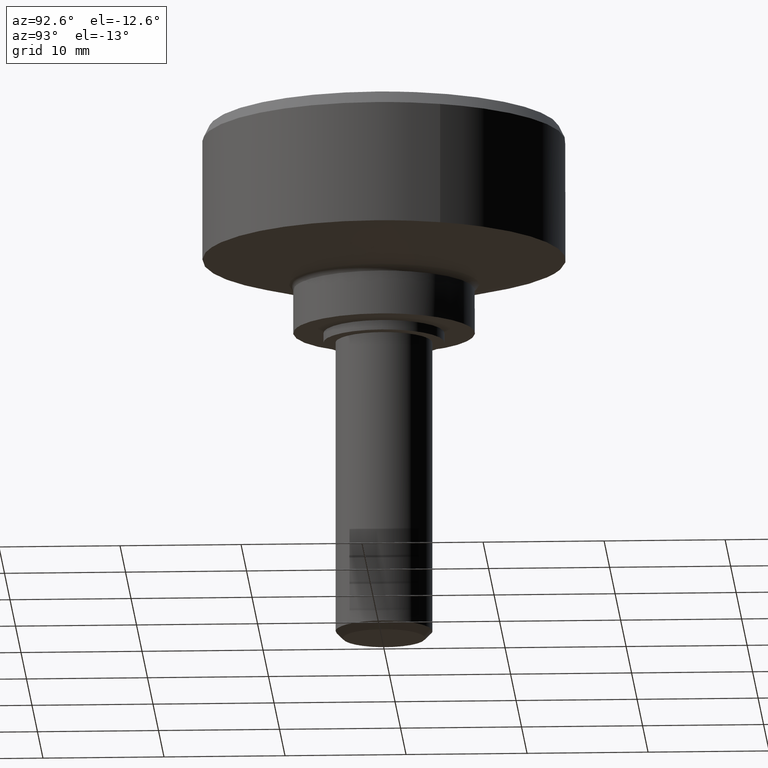
[diagram: clean part render]
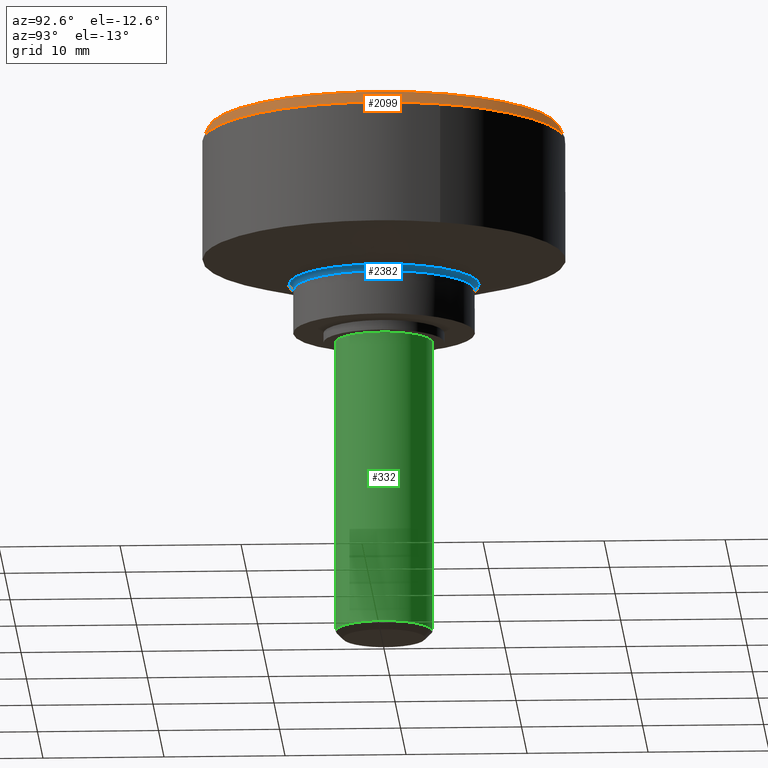
[diagram: same view with three faces highlighted in distinct colors, each labeled with its STEP entity id]
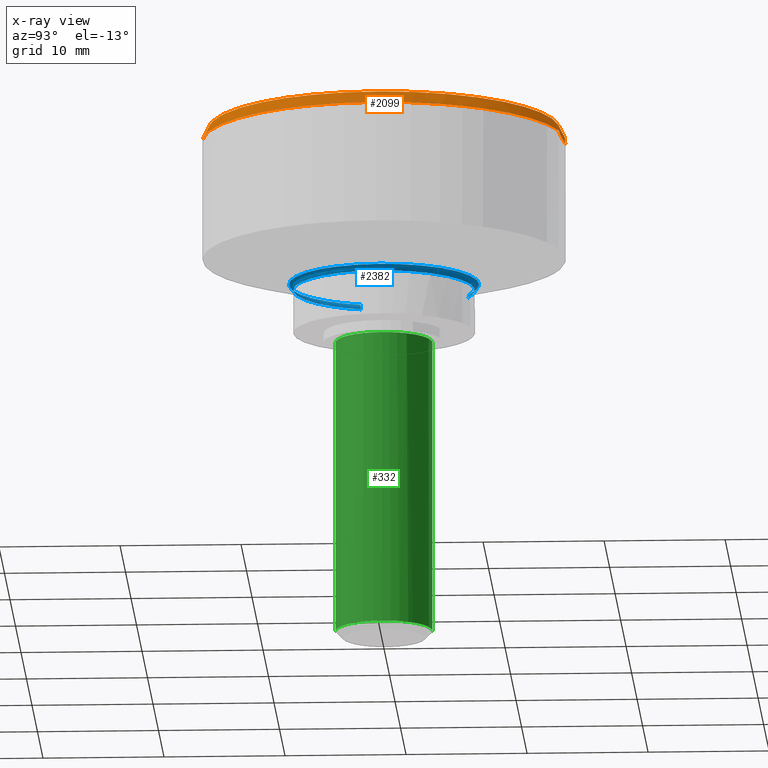
[diagram: x-ray of the same camera — body ghosted, the three highlighted faces saturated]
A machine part, auxiliary view with three faces highlighted in distinct colors.
The next image is the same camera in x-ray (body ghosted, the three faces saturated) — at least one of them is partly hidden behind the body in this view.
Their STEP definitions:

[orange] entity #2099 — the highlighted face is a freeform B-spline surface patch.
#1903=CARTESIAN_POINT('',(14.042153940228371,5.274268927437070,17.0));
#1904=VERTEX_POINT('',#1903);
#1905=CARTESIAN_POINT('',(15.0,0.0,17.0));
#1906=VERTEX_POINT('',#1905);
#1907=CARTESIAN_POINT('',(14.042153940228379,5.274268927437070,17.000000000000004));
#1908=CARTESIAN_POINT('',(15.000000000000004,2.724110031350862,17.000000000000004));
#1909=CARTESIAN_POINT('',(15.0,0.0,17.0));
#1917=(BOUNDED_CURVE()B_SPLINE_CURVE(2,(#1907,#1908,#1909),.UNSPECIFIED.,.F.,.U.)B_SPLINE_CURVE_WITH_KNOTS((3,3),(0.440284186386345,0.500000000000000),.UNSPECIFIED.)CURVE()GEOMETRIC_REPRESENTATION_ITEM()RATIONAL_B_SPLINE_CURVE((0.893499573588713,0.930038572546530,1.0))REPRESENTATION_ITEM(''));
#1918=EDGE_CURVE('',#1904,#1906,#1917,.T.);
#1920=CARTESIAN_POINT('',(0.915728093027169,-14.972021976328129,16.999999999998501));
#1921=VERTEX_POINT('',#1920);
#1922=CARTESIAN_POINT('',(15.0,0.0,17.0));
#1923=CARTESIAN_POINT('',(15.000000000000004,-14.110591003569139,16.999999999999993));
#1924=CARTESIAN_POINT('',(0.915728093027169,-14.972021976328126,16.999999999998497));
#1932=(BOUNDED_CURVE()B_SPLINE_CURVE(2,(#1922,#1923,#1924),.UNSPECIFIED.,.F.,.U.)B_SPLINE_CURVE_WITH_KNOTS((3,3),(0.500000000000000,0.739332962241769),.UNSPECIFIED.)CURVE()GEOMETRIC_REPRESENTATION_ITEM()RATIONAL_B_SPLINE_CURVE((1.0,0.719603993283399,0.976072041672776))REPRESENTATION_ITEM(''));
#1933=EDGE_CURVE('',#1906,#1921,#1932,.T.);
#1973=CARTESIAN_POINT('',(-1.770513519874283,14.895142895454370,16.999999999995840));
#1974=VERTEX_POINT('',#1973);
#1975=CARTESIAN_POINT('',(-1.770513519874283,14.895142895454363,16.999999999995833));
#1976=CARTESIAN_POINT('',(-0.888361794801552,15.000000000000005,16.999999999999993));
#1977=CARTESIAN_POINT('',(0.0,15.0,17.0));
#1978=CARTESIAN_POINT('',(10.389145023588087,14.999999999999995,17.0));
#1979=CARTESIAN_POINT('',(14.042153940228374,5.274268927437070,17.0));
#1987=(BOUNDED_CURVE()B_SPLINE_CURVE(2,(#1975,#1976,#1977,#1978,#1979),.UNSPECIFIED.,.F.,.U.)B_SPLINE_CURVE_WITH_KNOTS((3,2,3),(0.229562473515130,0.250000000000000,0.440284186386345),.UNSPECIFIED.)CURVE()GEOMETRIC_REPRESENTATION_ITEM()RATIONAL_B_SPLINE_CURVE((0.956026754186878,0.976055948333045,1.0,0.777068208640018,0.893499573588712))REPRESENTATION_ITEM(''));
#1988=EDGE_CURVE('',#1974,#1904,#1987,.T.);
#2028=CARTESIAN_POINT('',(-1.710020974589788,14.386225513193617,18.025000000000002));
#2029=CARTESIAN_POINT('',(-1.298293381142702,14.435165578811672,18.025000000000002));
#2030=CARTESIAN_POINT('',(-0.884440716511240,14.460477892136790,18.024999999999999));
#2031=CARTESIAN_POINT('',(13.576037175625551,15.344918608648038,18.024999999999999));
#2032=CARTESIAN_POINT('',(14.460477892136790,0.884440716511240,18.024999999999999));
#2033=CARTESIAN_POINT('',(15.344918608648038,-13.576037175625551,18.024999999999999));
#2034=CARTESIAN_POINT('',(0.884440716511240,-14.460477892136790,18.024999999999999));
#2035=CARTESIAN_POINT('',(-1.772025833482916,14.907865830011533,16.974374999999991));
#2036=CARTESIAN_POINT('',(-1.345369118280339,14.958580448052018,16.974374999999995));
#2037=CARTESIAN_POINT('',(-0.916510277435645,14.984810578432780,16.974374999999998));
#2038=CARTESIAN_POINT('',(14.068300300997135,15.901320855868425,16.974374999999995));
#2039=CARTESIAN_POINT('',(14.984810578432780,0.916510277435645,16.974374999999998));
#2040=CARTESIAN_POINT('',(15.901320855868425,-14.068300300997135,16.974374999999995));
#2041=CARTESIAN_POINT('',(0.916510277435645,-14.984810578432780,16.974374999999998));
#2049=(BOUNDED_SURFACE()B_SPLINE_SURFACE(2,1,((#2028,#2035),(#2029,#2036),(#2030,#2037),(#2031,#2038),(#2032,#2039),(#2033,#2040),(#2034,#2041)),.UNSPECIFIED.,.F.,.F.,.U.)B_SPLINE_SURFACE_WITH_KNOTS((3,2,2,3),(2,2),(0.0,0.994961687498294,25.869003874955609,50.743046062412930),(0.0,1.0),.UNSPECIFIED.)GEOMETRIC_REPRESENTATION_ITEM()RATIONAL_B_SPLINE_SURFACE(((0.977505800795127,0.977505800795127),(0.988284271247462,0.988284271247462),(1.0,1.0),(0.707106781186548,0.707106781186548),(1.0,1.0),(0.707106781186548,0.707106781186548),(1.0,1.0)))REPRESENTATION_ITEM('')SURFACE());
#2050=ORIENTED_EDGE('',*,*,#1988,.F.);
#2051=CARTESIAN_POINT('',(-1.711496402530074,14.398638132272970,17.999999999998710));
#2052=VERTEX_POINT('',#2051);
#2053=CARTESIAN_POINT('',(-1.711496402530074,14.398638132272970,17.999999999998710));
#2054=CARTESIAN_POINT('',(-1.770513519874283,14.895142895454370,16.999999999995840));
#2055=QUASI_UNIFORM_CURVE('',1,(#2053,#2054),.UNSPECIFIED.,.F.,.U.);
#2056=EDGE_CURVE('',#2052,#1974,#2055,.T.);
#2057=ORIENTED_EDGE('',*,*,#2056,.F.);
#2058=CARTESIAN_POINT('',(14.500000000000000,0.0,18.0));
#2059=VERTEX_POINT('',#2058);
#2060=CARTESIAN_POINT('',(-1.711496402530075,14.398638132272970,17.999999999998717));
#2061=CARTESIAN_POINT('',(-0.858749734959769,14.500000000000004,18.000000000000004));
#2062=CARTESIAN_POINT('',(0.0,14.500000000000000,18.0));
#2063=CARTESIAN_POINT('',(14.500000000000000,14.500000000000000,18.000000000000007));
#2064=CARTESIAN_POINT('',(14.500000000000000,0.0,18.0));
#2072=(BOUNDED_CURVE()B_SPLINE_CURVE(2,(#2060,#2061,#2062,#2063,#2064),.UNSPECIFIED.,.F.,.U.)B_SPLINE_CURVE_WITH_KNOTS((3,2,3),(0.229562473515480,0.250000000000000,0.500000000000000),.UNSPECIFIED.)CURVE()GEOMETRIC_REPRESENTATION_ITEM()RATIONAL_B_SPLINE_CURVE((0.956026754187564,0.976055948333455,1.0,0.707106781186548,1.0))REPRESENTATION_ITEM(''));
#2073=EDGE_CURVE('',#2052,#2059,#2072,.T.);
#2074=ORIENTED_EDGE('',*,*,#2073,.T.);
#2075=CARTESIAN_POINT('',(0.885203721272588,-14.472954530865970,18.000000104781471));
#2076=VERTEX_POINT('',#2075);
#2077=CARTESIAN_POINT('',(14.500000000000000,0.0,18.0));
#2078=CARTESIAN_POINT('',(14.500000000000002,-13.640238156682065,18.0));
#2079=CARTESIAN_POINT('',(0.885203721272588,-14.472954530865968,18.000000104781467));
#2087=(BOUNDED_CURVE()B_SPLINE_CURVE(2,(#2077,#2078,#2079),.UNSPECIFIED.,.F.,.U.)B_SPLINE_CURVE_WITH_KNOTS((3,3),(0.500000000000000,0.739332964597387),.UNSPECIFIED.)CURVE()GEOMETRIC_REPRESENTATION_ITEM()RATIONAL_B_SPLINE_CURVE((1.0,0.719603990523621,0.976072046721313))REPRESENTATION_ITEM(''));
#2088=EDGE_CURVE('',#2059,#2076,#2087,.T.);
#2089=ORIENTED_EDGE('',*,*,#2088,.T.);
#2090=CARTESIAN_POINT('',(0.885203721272588,-14.472954530865970,18.000000104781471));
#2091=CARTESIAN_POINT('',(0.915728093027169,-14.972021976328129,16.999999999998501));
#2092=QUASI_UNIFORM_CURVE('',1,(#2090,#2091),.UNSPECIFIED.,.F.,.U.);
#2093=EDGE_CURVE('',#2076,#1921,#2092,.T.);
#2094=ORIENTED_EDGE('',*,*,#2093,.T.);
#2095=ORIENTED_EDGE('',*,*,#1933,.F.);
#2096=ORIENTED_EDGE('',*,*,#1918,.F.);
#2097=EDGE_LOOP('',(#2050,#2057,#2074,#2089,#2094,#2095,#2096));
#2098=FACE_OUTER_BOUND('',#2097,.T.);
#2099=ADVANCED_FACE('',(#2098),#2049,.T.);

[blue] entity #2382 — the highlighted face is a freeform B-spline surface patch.
#1449=CARTESIAN_POINT('',(-3.382609773205561,-6.693874148965321,4.425598000054274));
#1450=VERTEX_POINT('',#1449);
#1451=CARTESIAN_POINT('',(-7.161484085598586,-2.227811861831730,4.425598000354706));
#1452=VERTEX_POINT('',#1451);
#1453=CARTESIAN_POINT('',(-3.382609773205562,-6.693874148965321,4.425598000054274));
#1454=CARTESIAN_POINT('',(-6.217870848443178,-5.261134063141549,4.425598000150568));
#1455=CARTESIAN_POINT('',(-7.161484085598586,-2.227811861831731,4.425598000354706));
#1463=(BOUNDED_CURVE()B_SPLINE_CURVE(2,(#1453,#1454,#1455),.UNSPECIFIED.,.F.,.U.)B_SPLINE_CURVE_WITH_KNOTS((3,3),(0.826686975630002,0.949458637681091),.UNSPECIFIED.)CURVE()GEOMETRIC_REPRESENTATION_ITEM()RATIONAL_B_SPLINE_CURVE((0.875430389496914,0.819837191780281,0.905515822341993))REPRESENTATION_ITEM(''));
#1464=EDGE_CURVE('',#1450,#1452,#1463,.T.);
#1481=CARTESIAN_POINT('',(-3.039806692161672,6.856352913487541,4.425598000356830));
#1482=VERTEX_POINT('',#1481);
#1496=CARTESIAN_POINT('',(7.500000000000000,0.0,4.425597999999895));
#1497=VERTEX_POINT('',#1496);
#1498=CARTESIAN_POINT('',(-3.039806692161671,6.856352913487540,4.425598000356830));
#1499=CARTESIAN_POINT('',(-1.588046095594149,7.499999999999999,4.425597999999895));
#1500=CARTESIAN_POINT('',(0.0,7.500000000000000,4.425597999999895));
#1501=CARTESIAN_POINT('',(7.500000000000000,7.500000000000000,4.425597999999895));
#1502=CARTESIAN_POINT('',(7.500000000000000,0.0,4.425597999999895));
#1510=(BOUNDED_CURVE()B_SPLINE_CURVE(2,(#1498,#1499,#1500,#1501,#1502),.UNSPECIFIED.,.F.,.U.)B_SPLINE_CURVE_WITH_KNOTS((3,2,3),(0.181175101877625,0.250000000000000,0.500000000000000),.UNSPECIFIED.)CURVE()GEOMETRIC_REPRESENTATION_ITEM()RATIONAL_B_SPLINE_CURVE((0.883129907828060,0.919366616217718,1.0,0.707106781186547,1.0))REPRESENTATION_ITEM(''));
#1511=EDGE_CURVE('',#1482,#1497,#1510,.T.);
#1513=CARTESIAN_POINT('',(1.623292744224767,-7.322221020054451,4.425597999999832));
#1514=VERTEX_POINT('',#1513);
#1515=CARTESIAN_POINT('',(7.500000000000000,0.0,4.425597999999895));
#1516=CARTESIAN_POINT('',(7.500000000000000,-6.019390059052944,4.425597999999897));
#1517=CARTESIAN_POINT('',(1.623292744224767,-7.322221020054451,4.425597999999832));
#1525=(BOUNDED_CURVE()B_SPLINE_CURVE(2,(#1515,#1516,#1517),.UNSPECIFIED.,.F.,.U.)B_SPLINE_CURVE_WITH_KNOTS((3,3),(0.500000000000000,0.712959982815623),.UNSPECIFIED.)CURVE()GEOMETRIC_REPRESENTATION_ITEM()RATIONAL_B_SPLINE_CURVE((1.0,0.750501860618698,0.926068677038772))REPRESENTATION_ITEM(''));
#1526=EDGE_CURVE('',#1497,#1514,#1525,.T.);
#1604=CARTESIAN_POINT('',(1.623292744224767,-7.322221020054451,4.425597999999832));
#1605=CARTESIAN_POINT('',(0.821381327752060,-7.499999999999999,4.425597999999896));
#1606=CARTESIAN_POINT('',(0.0,-7.500000000000000,4.425597999999895));
#1607=CARTESIAN_POINT('',(-1.787360732720821,-7.500000000000001,4.425597999999896));
#1608=CARTESIAN_POINT('',(-3.382609773205562,-6.693874148965321,4.425598000054274));
#1616=(BOUNDED_CURVE()B_SPLINE_CURVE(2,(#1604,#1605,#1606,#1607,#1608),.UNSPECIFIED.,.F.,.U.)B_SPLINE_CURVE_WITH_KNOTS((3,2,3),(0.712959982815623,0.750000000000000,0.826686975630002),.UNSPECIFIED.)CURVE()GEOMETRIC_REPRESENTATION_ITEM()RATIONAL_B_SPLINE_CURVE((0.926068677038772,0.956604920567849,1.0,0.910155619466639,0.875430389496914))REPRESENTATION_ITEM(''));
#1617=EDGE_CURVE('',#1514,#1450,#1616,.T.);
#1674=CARTESIAN_POINT('',(-2.268775112510712,7.524670393638881,4.905386708626956));
#1675=VERTEX_POINT('',#1674);
#1681=CARTESIAN_POINT('',(-3.185418617410837,7.184783912221738,4.905385299377503));
#1682=VERTEX_POINT('',#1681);
#1683=CARTESIAN_POINT('',(-3.185418617410837,7.184783912221739,4.905385299377503));
#1684=CARTESIAN_POINT('',(-2.737687165878642,7.383288212065284,4.905385998990518));
#1685=CARTESIAN_POINT('',(-2.268775112510712,7.524670393638881,4.905386708626957));
#1693=(BOUNDED_CURVE()B_SPLINE_CURVE(2,(#1683,#1684,#1685),.UNSPECIFIED.,.F.,.U.)B_SPLINE_CURVE_WITH_KNOTS((3,3),(0.181175101877542,0.200860798448642),.UNSPECIFIED.)CURVE()GEOMETRIC_REPRESENTATION_ITEM()RATIONAL_B_SPLINE_CURVE((0.883129907827973,0.893494541348023,0.907491300555911))REPRESENTATION_ITEM(''));
#1694=EDGE_CURVE('',#1682,#1675,#1693,.T.);
#1711=CARTESIAN_POINT('',(-7.504531387975119,-2.334527849778683,4.905385299396691));
#1712=VERTEX_POINT('',#1711);
#1726=CARTESIAN_POINT('',(1.834708243734995,-7.642109825487701,4.905387337025470));
#1727=VERTEX_POINT('',#1726);
#1728=CARTESIAN_POINT('',(1.834708243734995,-7.642109825487701,4.905387337025471));
#1729=CARTESIAN_POINT('',(0.930204749524986,-7.859262121587480,4.905386604338832));
#1730=CARTESIAN_POINT('',(-0.000000435609949,-7.859262135510602,4.905386444520069));
#1731=CARTESIAN_POINT('',(-5.785883555589410,-7.859262222112526,4.905385450446178));
#1732=CARTESIAN_POINT('',(-7.504531387975120,-2.334527849778683,4.905385299396693));
#1740=(BOUNDED_CURVE()B_SPLINE_CURVE(2,(#1728,#1729,#1730,#1731,#1732),.UNSPECIFIED.,.F.,.U.)B_SPLINE_CURVE_WITH_KNOTS((3,2,3),(0.710109822896078,0.750000000000000,0.949458637681295),.UNSPECIFIED.)CURVE()GEOMETRIC_REPRESENTATION_ITEM()RATIONAL_B_SPLINE_CURVE((0.921445400941842,0.953265750515975,1.0,0.766319670357518,0.905515822342278))REPRESENTATION_ITEM(''));
#1741=EDGE_CURVE('',#1727,#1712,#1740,.T.);
#1851=CARTESIAN_POINT('',(7.859262000000000,0.0,4.905388000000000));
#1852=VERTEX_POINT('',#1851);
#1853=CARTESIAN_POINT('',(7.859262000000000,0.0,4.905388000000000));
#1854=CARTESIAN_POINT('',(7.859261954702281,-6.195742304599032,4.905387838250496));
#1855=CARTESIAN_POINT('',(1.834708243734995,-7.642109825487701,4.905387337025470));
#1863=(BOUNDED_CURVE()B_SPLINE_CURVE(2,(#1853,#1854,#1855),.UNSPECIFIED.,.F.,.U.)B_SPLINE_CURVE_WITH_KNOTS((3,3),(0.500000000000000,0.710109822896078),.UNSPECIFIED.)CURVE()GEOMETRIC_REPRESENTATION_ITEM()RATIONAL_B_SPLINE_CURVE((1.0,0.753841030670573,0.921445400941843))REPRESENTATION_ITEM(''));
#1864=EDGE_CURVE('',#1852,#1727,#1863,.T.);
#1866=CARTESIAN_POINT('',(-2.268775112510712,7.524670393638881,4.905386708626957));
#1867=CARTESIAN_POINT('',(-1.159059936875689,7.859262308526630,4.905386791234538));
#1868=CARTESIAN_POINT('',(-0.000000169732821,7.859262281847299,4.905386895270277));
#1869=CARTESIAN_POINT('',(7.859261936161201,7.859262100942164,4.905387600707702));
#1870=CARTESIAN_POINT('',(7.859262000000000,0.0,4.905388000000000));
#1878=(BOUNDED_CURVE()B_SPLINE_CURVE(2,(#1866,#1867,#1868,#1869,#1870),.UNSPECIFIED.,.F.,.U.)B_SPLINE_CURVE_WITH_KNOTS((3,2,3),(0.200860798448642,0.250000000000000,0.500000000000000),.UNSPECIFIED.)CURVE()GEOMETRIC_REPRESENTATION_ITEM()RATIONAL_B_SPLINE_CURVE((0.907491300555911,0.942429844350799,1.0,0.707106781186548,1.0))REPRESENTATION_ITEM(''));
#1879=EDGE_CURVE('',#1675,#1852,#1878,.T.);
#2311=CARTESIAN_POINT('',(-3.040162225193437,6.857156913067888,4.395961400066365));
#2312=CARTESIAN_POINT('',(-2.642956113644304,7.033260658578850,4.395961400066362));
#2313=CARTESIAN_POINT('',(-2.228072991341730,7.162323507855628,4.395961400066364));
#2314=CARTESIAN_POINT('',(4.934250516513897,9.390396499197355,4.395961400066363));
#2315=CARTESIAN_POINT('',(7.162323507855628,2.228072991341730,4.395961400066364));
#2316=CARTESIAN_POINT('',(9.390396499197355,-4.934250516513895,4.395961400066363));
#2317=CARTESIAN_POINT('',(2.228072991341731,-7.162323507855628,4.395961400066364));
#2318=CARTESIAN_POINT('',(-4.934250516513895,-9.390396499197355,4.395961400066363));
#2319=CARTESIAN_POINT('',(-7.162323507855628,-2.228072991341731,4.395961400066364));
#2320=CARTESIAN_POINT('',(-3.030003489924287,6.834243648373786,4.818077996215787));
#2321=CARTESIAN_POINT('',(-2.634124646933746,7.009758941296354,4.818077996215786));
#2322=CARTESIAN_POINT('',(-2.220627861114201,7.138390525653118,4.818077996215787));
#2323=CARTESIAN_POINT('',(4.917762664538915,9.359018386767314,4.818077996215786));
#2324=CARTESIAN_POINT('',(7.138390525653118,2.220627861114201,4.818077996215787));
#2325=CARTESIAN_POINT('',(9.359018386767314,-4.917762664538915,4.818077996215786));
#2326=CARTESIAN_POINT('',(2.220627861114201,-7.138390525653116,4.818077996215787));
#2327=CARTESIAN_POINT('',(-4.917762664538915,-9.359018386767314,4.818077996215786));
#2328=CARTESIAN_POINT('',(-7.138390525653116,-2.220627861114203,4.818077996215787));
#2329=CARTESIAN_POINT('',(-3.197029822694957,7.210975443450905,4.912872495450399));
#2330=CARTESIAN_POINT('',(-2.779328499437945,7.396165865732072,4.912872495450397));
#2331=CARTESIAN_POINT('',(-2.343038059427056,7.531888155391662,4.912872495450397));
#2332=CARTESIAN_POINT('',(5.188850095964602,9.874926214818718,4.912872495450398));
#2333=CARTESIAN_POINT('',(7.531888155391662,2.343038059427057,4.912872495450397));
#2334=CARTESIAN_POINT('',(9.874926214818718,-5.188850095964602,4.912872495450398));
#2335=CARTESIAN_POINT('',(2.343038059427057,-7.531888155391658,4.912872495450397));
#2336=CARTESIAN_POINT('',(-5.188850095964602,-9.874926214818718,4.912872495450398));
#2337=CARTESIAN_POINT('',(-7.531888155391658,-2.343038059427058,4.912872495450397));
#2345=(BOUNDED_SURFACE()B_SPLINE_SURFACE(2,2,((#2311,#2320,#2329),(#2312,#2321,#2330),(#2313,#2322,#2331),(#2314,#2323,#2332),(#2315,#2324,#2333),(#2316,#2325,#2334),(#2317,#2326,#2335),(#2318,#2327,#2336),(#2319,#2328,#2337)),.UNSPECIFIED.,.F.,.F.,.U.)B_SPLINE_SURFACE_WITH_KNOTS((3,2,2,2,3),(3,3),(0.0,1.045528735105909,14.114650387615431,27.183772040124950,40.252893692634473),(0.0,0.732328902994734),.UNSPECIFIED.)GEOMETRIC_REPRESENTATION_ITEM()RATIONAL_B_SPLINE_SURFACE(((0.875913838850717,0.669247334751584,0.877076460255159),(0.893930709945799,0.683013235489911,0.895117245574502),(0.915379362115176,0.699401209582436,0.916594367053305),(0.647270954309857,0.494551338065814,0.648130092540784),(0.915379362115176,0.699401209582436,0.916594367053305),(0.647270954309857,0.494551338065814,0.648130092540784),(0.915379362115176,0.699401209582436,0.916594367053305),(0.647270954309857,0.494551338065814,0.648130092540784),(0.915379362115176,0.699401209582436,0.916594367053305)))REPRESENTATION_ITEM('')SURFACE());
#2346=ORIENTED_EDGE('',*,*,#1511,.F.);
#2347=CARTESIAN_POINT('',(-3.039806692161672,6.856352913487542,4.425598000356830));
#2348=CARTESIAN_POINT('',(-3.039806531846560,6.856352551883928,4.800000263757887));
#2349=CARTESIAN_POINT('',(-3.185418617410837,7.184783912221738,4.905385299377503));
#2357=(BOUNDED_CURVE()B_SPLINE_CURVE(2,(#2347,#2348,#2349),.UNSPECIFIED.,.F.,.U.)B_SPLINE_CURVE_WITH_KNOTS((3,3),(-1.680154583775890,-0.315636265489875),.UNSPECIFIED.)CURVE()GEOMETRIC_REPRESENTATION_ITEM()RATIONAL_B_SPLINE_CURVE((0.857997956993646,0.687216022473706,0.859054844533958))REPRESENTATION_ITEM(''));
#2358=EDGE_CURVE('',#1482,#1682,#2357,.T.);
#2359=ORIENTED_EDGE('',*,*,#2358,.T.);
#2360=ORIENTED_EDGE('',*,*,#1694,.T.);
#2361=ORIENTED_EDGE('',*,*,#1879,.T.);
#2362=ORIENTED_EDGE('',*,*,#1864,.T.);
#2363=ORIENTED_EDGE('',*,*,#1741,.T.);
#2364=CARTESIAN_POINT('',(-7.161484085598586,-2.227811861831730,4.425598000354706));
#2365=CARTESIAN_POINT('',(-7.161483707901740,-2.227811744333997,4.800000263811211));
#2366=CARTESIAN_POINT('',(-7.504531387975119,-2.334527849778684,4.905385299396690));
#2374=(BOUNDED_CURVE()B_SPLINE_CURVE(2,(#2364,#2365,#2366),.UNSPECIFIED.,.F.,.U.)B_SPLINE_CURVE_WITH_KNOTS((3,3),(-1.680154583785551,-0.315636265334594),.UNSPECIFIED.)CURVE()GEOMETRIC_REPRESENTATION_ITEM()RATIONAL_B_SPLINE_CURVE((0.896656290320546,0.718179529819583,0.897760797489071))REPRESENTATION_ITEM(''));
#2375=EDGE_CURVE('',#1452,#1712,#2374,.T.);
#2376=ORIENTED_EDGE('',*,*,#2375,.F.);
#2377=ORIENTED_EDGE('',*,*,#1464,.F.);
#2378=ORIENTED_EDGE('',*,*,#1617,.F.);
#2379=ORIENTED_EDGE('',*,*,#1526,.F.);
#2380=EDGE_LOOP('',(#2346,#2359,#2360,#2361,#2362,#2363,#2376,#2377,#2378,#2379));
#2381=FACE_OUTER_BOUND('',#2380,.T.);
#2382=ADVANCED_FACE('',(#2381),#2345,.F.);

[green] entity #332 — the highlighted face is a freeform B-spline surface patch.
#66=CARTESIAN_POINT('',(-0.472133404130992,3.972038525579908,-24.399994000000099));
#67=VERTEX_POINT('',#66);
#68=CARTESIAN_POINT('',(3.372160195433495,2.151403173827347,-24.399993999997552));
#69=VERTEX_POINT('',#68);
#70=CARTESIAN_POINT('',(-0.472133404130992,3.972038525579908,-24.399994000000103));
#71=CARTESIAN_POINT('',(-0.236894692676735,4.0,-24.399994000000103));
#72=CARTESIAN_POINT('',(0.0,4.0,-24.399994000000099));
#73=CARTESIAN_POINT('',(2.192774623995357,4.000000000000001,-24.399994000000103));
#74=CARTESIAN_POINT('',(3.372160195433495,2.151403173827348,-24.399993999997552));
#82=(BOUNDED_CURVE()B_SPLINE_CURVE(2,(#70,#71,#72,#73,#74),.UNSPECIFIED.,.F.,.U.)B_SPLINE_CURVE_WITH_KNOTS((3,2,3),(0.229562623902255,0.250000000000000,0.407950112623843),.UNSPECIFIED.)CURVE()GEOMETRIC_REPRESENTATION_ITEM()RATIONAL_B_SPLINE_CURVE((0.956027048952009,0.976056124522521,1.0,0.814949932406621,0.863729296952634))REPRESENTATION_ITEM(''));
#83=EDGE_CURVE('',#67,#69,#82,.T.);
#126=CARTESIAN_POINT('',(0.313836383069277,-3.987669334940677,-24.399993999979579));
#127=VERTEX_POINT('',#126);
#133=CARTESIAN_POINT('',(0.244194158168079,-3.992539193685715,-24.399994000000099));
#134=VERTEX_POINT('',#133);
#135=CARTESIAN_POINT('',(0.313836383069277,-3.987669334940677,-24.399993999979571));
#136=CARTESIAN_POINT('',(0.279036520017276,-3.990408143542286,-24.399994000000103));
#137=CARTESIAN_POINT('',(0.244194158168079,-3.992539193685715,-24.399994000000103));
#145=(BOUNDED_CURVE()B_SPLINE_CURVE(2,(#135,#136,#137),.UNSPECIFIED.,.F.,.U.)B_SPLINE_CURVE_WITH_KNOTS((3,3),(0.736331300619330,0.739332962239491),.UNSPECIFIED.)CURVE()GEOMETRIC_REPRESENTATION_ITEM()RATIONAL_B_SPLINE_CURVE((0.969723356143774,0.972855475548367,0.976072041667893))REPRESENTATION_ITEM(''));
#146=EDGE_CURVE('',#127,#134,#145,.T.);
#199=CARTESIAN_POINT('',(4.0,0.0,-24.399994000000099));
#200=VERTEX_POINT('',#199);
#201=CARTESIAN_POINT('',(3.372160195433495,2.151403173827348,-24.399993999997552));
#202=CARTESIAN_POINT('',(4.000000000000000,1.167312221570039,-24.399994000000110));
#203=CARTESIAN_POINT('',(4.0,0.0,-24.399994000000099));
#211=(BOUNDED_CURVE()B_SPLINE_CURVE(2,(#201,#202,#203),.UNSPECIFIED.,.F.,.U.)B_SPLINE_CURVE_WITH_KNOTS((3,3),(0.407950112623843,0.500000000000000),.UNSPECIFIED.)CURVE()GEOMETRIC_REPRESENTATION_ITEM()RATIONAL_B_SPLINE_CURVE((0.863729296952634,0.892156848779926,1.0))REPRESENTATION_ITEM(''));
#212=EDGE_CURVE('',#69,#200,#211,.T.);
#214=CARTESIAN_POINT('',(4.0,0.0,-24.399994000000099));
#215=CARTESIAN_POINT('',(4.000000000000001,-3.697561966342107,-24.399994000000099));
#216=CARTESIAN_POINT('',(0.313836383069277,-3.987669334940677,-24.399993999979579));
#224=(BOUNDED_CURVE()B_SPLINE_CURVE(2,(#214,#215,#216),.UNSPECIFIED.,.F.,.U.)B_SPLINE_CURVE_WITH_KNOTS((3,3),(0.500000000000000,0.736331300619330),.UNSPECIFIED.)CURVE()GEOMETRIC_REPRESENTATION_ITEM()RATIONAL_B_SPLINE_CURVE((1.0,0.723120658620939,0.969723356143774))REPRESENTATION_ITEM(''));
#225=EDGE_CURVE('',#200,#127,#224,.T.);
#260=CARTESIAN_POINT('',(-0.472136938627034,3.972038105454666,0.609999850000003));
#261=CARTESIAN_POINT('',(-0.358458914551911,3.985550461794422,0.609999850000003));
#262=CARTESIAN_POINT('',(-0.244194158139428,3.992539193687467,0.609999850000003));
#263=CARTESIAN_POINT('',(3.748345035548039,4.236733351826894,0.609999850000003));
#264=CARTESIAN_POINT('',(3.992539193687467,0.244194158139428,0.609999850000003));
#265=CARTESIAN_POINT('',(4.236733351826894,-3.748345035548039,0.609999850000003));
#266=CARTESIAN_POINT('',(0.244194158139428,-3.992539193687467,0.609999850000003));
#267=CARTESIAN_POINT('',(-0.472136938627034,3.972038105454666,-25.025243846250106));
#268=CARTESIAN_POINT('',(-0.358458914551911,3.985550461794422,-25.025243846250110));
#269=CARTESIAN_POINT('',(-0.244194158139428,3.992539193687467,-25.025243846250110));
#270=CARTESIAN_POINT('',(3.748345035548039,4.236733351826894,-25.025243846250106));
#271=CARTESIAN_POINT('',(3.992539193687467,0.244194158139428,-25.025243846250110));
#272=CARTESIAN_POINT('',(4.236733351826894,-3.748345035548039,-25.025243846250106));
#273=CARTESIAN_POINT('',(0.244194158139428,-3.992539193687467,-25.025243846250110));
#281=(BOUNDED_SURFACE()B_SPLINE_SURFACE(2,1,((#260,#267),(#261,#268),(#262,#269),(#263,#270),(#264,#271),(#265,#272),(#266,#273)),.UNSPECIFIED.,.F.,.F.,.U.)B_SPLINE_SURFACE_WITH_KNOTS((3,2,2,3),(2,2),(0.0,0.265096679918781,6.892513677888299,13.519930675857820),(0.0,25.635243696250122),.UNSPECIFIED.)GEOMETRIC_REPRESENTATION_ITEM()RATIONAL_B_SPLINE_SURFACE(((0.977505800795127,0.977505800795127),(0.988284271247462,0.988284271247462),(1.0,1.0),(0.707106781186548,0.707106781186548),(1.0,1.0),(0.707106781186548,0.707106781186548),(1.0,1.0)))REPRESENTATION_ITEM('')SURFACE());
#282=ORIENTED_EDGE('',*,*,#83,.F.);
#283=CARTESIAN_POINT('',(-0.472133447664660,3.972038520405349,-5.678856E-016));
#284=VERTEX_POINT('',#283);
#285=CARTESIAN_POINT('',(-0.472133447664660,3.972038520405349,-5.678856E-016));
#286=CARTESIAN_POINT('',(-0.472133404130992,3.972038525579908,-24.399994000000099));
#287=QUASI_UNIFORM_CURVE('',1,(#285,#286),.UNSPECIFIED.,.F.,.U.);
#288=EDGE_CURVE('',#284,#67,#287,.T.);
#289=ORIENTED_EDGE('',*,*,#288,.F.);
#290=CARTESIAN_POINT('',(4.0,0.0,0.0));
#291=VERTEX_POINT('',#290);
#292=CARTESIAN_POINT('',(-0.472133447664660,3.972038520405350,-5.678856E-016));
#293=CARTESIAN_POINT('',(-0.236894714673680,4.0,0.0));
#294=CARTESIAN_POINT('',(0.0,4.0,0.0));
#295=CARTESIAN_POINT('',(4.000000000000000,4.000000000000000,0.0));
#296=CARTESIAN_POINT('',(4.0,0.0,0.0));
#304=(BOUNDED_CURVE()B_SPLINE_CURVE(2,(#292,#293,#294,#295,#296),.UNSPECIFIED.,.F.,.U.)B_SPLINE_CURVE_WITH_KNOTS((3,2,3),(0.229562622049973,0.250000000000000,0.500000000000000),.UNSPECIFIED.)CURVE()GEOMETRIC_REPRESENTATION_ITEM()RATIONAL_B_SPLINE_CURVE((0.956027045321456,0.976056122352439,1.0,0.707106781186548,1.0))REPRESENTATION_ITEM(''));
#305=EDGE_CURVE('',#284,#291,#304,.T.);
#306=ORIENTED_EDGE('',*,*,#305,.T.);
#307=CARTESIAN_POINT('',(0.244194158168080,-3.992539193685714,8.881784E-016));
#308=VERTEX_POINT('',#307);
#309=CARTESIAN_POINT('',(4.0,0.0,0.0));
#310=CARTESIAN_POINT('',(4.0,-3.762824267568662,0.0));
#311=CARTESIAN_POINT('',(0.244194158168080,-3.992539193685715,8.881784E-016));
#319=(BOUNDED_CURVE()B_SPLINE_CURVE(2,(#309,#310,#311),.UNSPECIFIED.,.F.,.U.)B_SPLINE_CURVE_WITH_KNOTS((3,3),(0.500000000000000,0.739332962239491),.UNSPECIFIED.)CURVE()GEOMETRIC_REPRESENTATION_ITEM()RATIONAL_B_SPLINE_CURVE((1.0,0.719603993286068,0.976072041667893))REPRESENTATION_ITEM(''));
#320=EDGE_CURVE('',#291,#308,#319,.T.);
#321=ORIENTED_EDGE('',*,*,#320,.T.);
#322=CARTESIAN_POINT('',(0.244194158168080,-3.992539193685714,8.881784E-016));
#323=CARTESIAN_POINT('',(0.244194158168079,-3.992539193685715,-24.399994000000099));
#324=QUASI_UNIFORM_CURVE('',1,(#322,#323),.UNSPECIFIED.,.F.,.U.);
#325=EDGE_CURVE('',#308,#134,#324,.T.);
#326=ORIENTED_EDGE('',*,*,#325,.T.);
#327=ORIENTED_EDGE('',*,*,#146,.F.);
#328=ORIENTED_EDGE('',*,*,#225,.F.);
#329=ORIENTED_EDGE('',*,*,#212,.F.);
#330=EDGE_LOOP('',(#282,#289,#306,#321,#326,#327,#328,#329));
#331=FACE_OUTER_BOUND('',#330,.T.);
#332=ADVANCED_FACE('',(#331),#281,.T.);